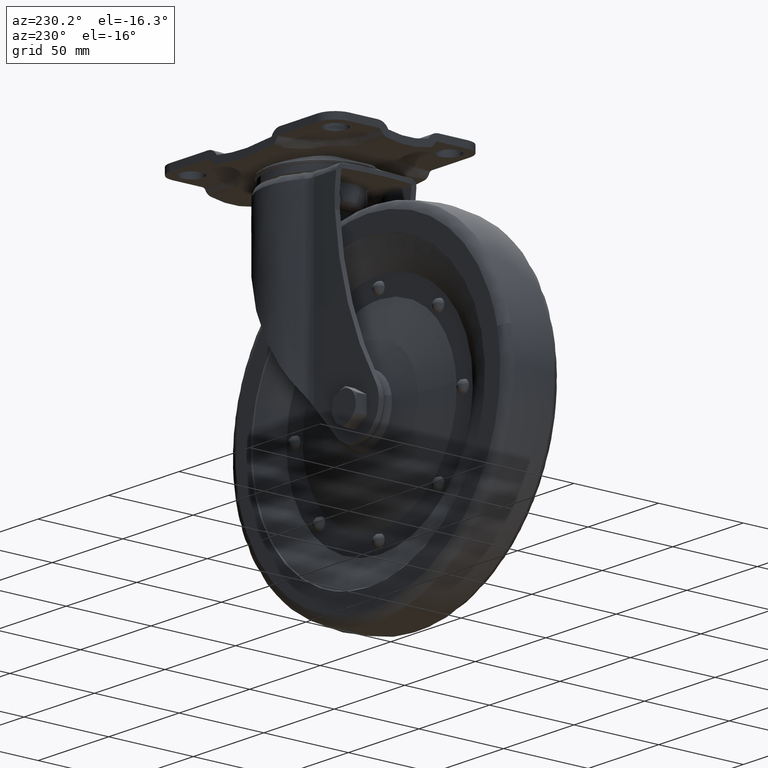
[diagram: clean part render]
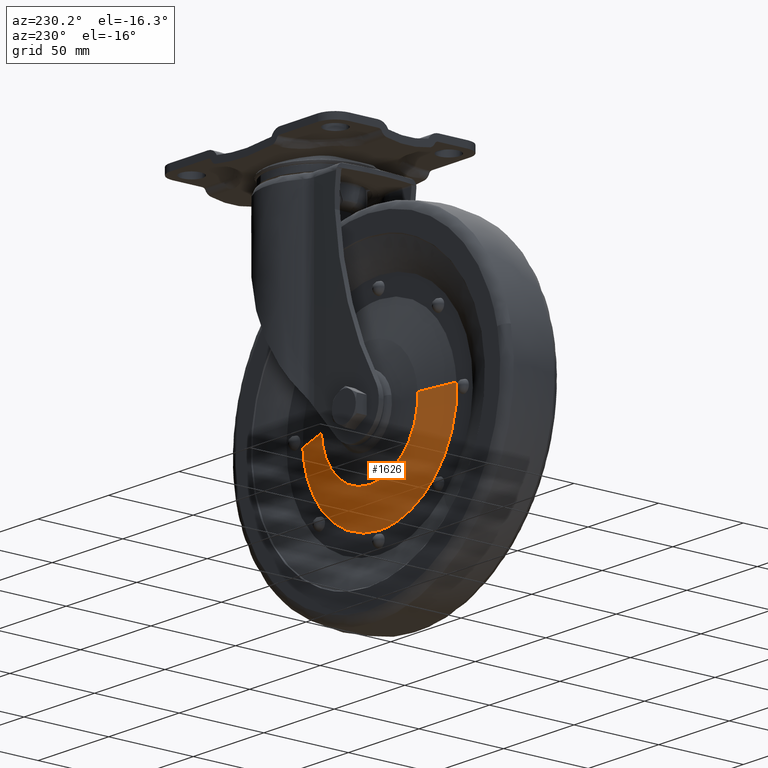
[diagram: same view with one face highlighted and labeled with its STEP entity id]
A machine part, auxiliary view. The second image highlights one B-rep face of the part: STEP entity #1626.
In plain terms, the highlighted face is a freeform B-spline surface patch.
Its self-contained STEP definition (entity closure, byte-faithful):
#871=CARTESIAN_POINT('',(-53.0,15.004481007767099,-169.942107020119810));
#872=VERTEX_POINT('',#871);
#886=CARTESIAN_POINT('',(-87.149060116877493,15.004481007727289,-133.640587003389300));
#887=VERTEX_POINT('',#886);
#888=CARTESIAN_POINT('',(-87.149060116877493,15.004481007727289,-133.640587003389300));
#889=CARTESIAN_POINT('',(-87.212874023550626,15.004481007727859,-134.683935154448390));
#890=CARTESIAN_POINT('',(-87.212874023548551,15.004481007728470,-135.729232996694210));
#891=CARTESIAN_POINT('',(-87.212874023480822,15.004481007748378,-169.942107020115740));
#892=CARTESIAN_POINT('',(-53.0,15.004481007767099,-169.942107020119810));
#900=(BOUNDED_CURVE()B_SPLINE_CURVE(2,(#888,#889,#890,#891,#892),.UNSPECIFIED.,.F.,.U.)B_SPLINE_CURVE_WITH_KNOTS((3,2,3),(0.739332962237497,0.750000000000000,1.0),.UNSPECIFIED.)CURVE()GEOMETRIC_REPRESENTATION_ITEM()RATIONAL_B_SPLINE_CURVE((0.976072041663618,0.987502787898143,1.0,0.707106781186547,1.0))REPRESENTATION_ITEM(''));
#901=EDGE_CURVE('',#887,#872,#900,.T.);
#949=CARTESIAN_POINT('',(-18.850939883122511,15.004481007727289,-137.817878990015090));
#950=VERTEX_POINT('',#949);
#966=CARTESIAN_POINT('',(-53.0,15.004481007767099,-169.942107020119810));
#967=CARTESIAN_POINT('',(-20.815741840659125,15.004481007747183,-169.942107020123640));
#968=CARTESIAN_POINT('',(-18.850939883122511,15.004481007727291,-137.817878990015090));
#976=(BOUNDED_CURVE()B_SPLINE_CURVE(2,(#966,#967,#968),.UNSPECIFIED.,.F.,.U.)B_SPLINE_CURVE_WITH_KNOTS((3,3),(0.0,0.239332962237497),.UNSPECIFIED.)CURVE()GEOMETRIC_REPRESENTATION_ITEM()RATIONAL_B_SPLINE_CURVE((1.0,0.719603993288404,0.976072041663619))REPRESENTATION_ITEM(''));
#977=EDGE_CURVE('',#872,#950,#976,.T.);
#1525=CARTESIAN_POINT('',(-107.508440782258010,8.999999999999858,-132.395353938138610));
#1526=VERTEX_POINT('',#1525);
#1527=CARTESIAN_POINT('',(-87.149060116877493,15.004481007727289,-133.640587003389300));
#1528=CARTESIAN_POINT('',(-107.508440782258010,8.999999999999858,-132.395353938138610));
#1529=QUASI_UNIFORM_CURVE('',1,(#1527,#1528),.UNSPECIFIED.,.F.,.U.);
#1530=EDGE_CURVE('',#887,#1526,#1529,.T.);
#1547=CARTESIAN_POINT('',(1.508440782257971,8.999999999999858,-139.063112055265690));
#1548=VERTEX_POINT('',#1547);
#1564=CARTESIAN_POINT('',(-18.850939883122511,15.004481007727289,-137.817878990015090));
#1565=CARTESIAN_POINT('',(1.508440782257971,8.999999999999858,-139.063112055265690));
#1566=QUASI_UNIFORM_CURVE('',1,(#1564,#1565),.UNSPECIFIED.,.F.,.U.);
#1567=EDGE_CURVE('',#950,#1548,#1566,.T.);
#1572=CARTESIAN_POINT('',(-86.640075600159520,15.154593032961429,-133.671717830936100));
#1573=CARTESIAN_POINT('',(-88.697590765925639,15.154593032961436,-167.311793431095510));
#1574=CARTESIAN_POINT('',(-55.057515165766127,15.154593032961429,-169.369308596861710));
#1575=CARTESIAN_POINT('',(-21.417439565606625,15.154593032961436,-171.426823762627950));
#1576=CARTESIAN_POINT('',(-19.359924399840491,15.154593032961429,-137.786748162468310));
#1577=CARTESIAN_POINT('',(-108.030149911810100,8.846135174175963,-132.363444840821900));
#1578=CARTESIAN_POINT('',(-111.395938067690390,8.846135174175963,-187.393594752632110));
#1579=CARTESIAN_POINT('',(-56.365788155880260,8.846135174175963,-190.759382908512290));
#1580=CARTESIAN_POINT('',(-1.335638244070132,8.846135174175963,-194.125171064392650));
#1581=CARTESIAN_POINT('',(2.030149911810128,8.846135174175963,-139.095021152582490));
#1589=(BOUNDED_SURFACE()B_SPLINE_SURFACE(2,1,((#1572,#1577),(#1573,#1578),(#1574,#1579),(#1575,#1580),(#1576,#1581)),.UNSPECIFIED.,.F.,.F.,.U.)B_SPLINE_SURFACE_WITH_KNOTS((3,2,3),(2,2),(0.0,91.347318894946454,182.694637789892910),(0.0,22.339281497637071),.UNSPECIFIED.)GEOMETRIC_REPRESENTATION_ITEM()RATIONAL_B_SPLINE_SURFACE(((1.0,1.0),(0.707106781186548,0.707106781186548),(1.0,1.0),(0.707106781186548,0.707106781186548),(1.0,1.0)))REPRESENTATION_ITEM('')SURFACE());
#1590=ORIENTED_EDGE('',*,*,#977,.T.);
#1591=ORIENTED_EDGE('',*,*,#1567,.T.);
#1592=CARTESIAN_POINT('',(-53.0,9.0,-190.339532996702190));
#1593=VERTEX_POINT('',#1592);
#1594=CARTESIAN_POINT('',(-53.0,9.0,-190.339532996702190));
#1595=CARTESIAN_POINT('',(-1.627759474462835,9.0,-190.339532996702250));
#1596=CARTESIAN_POINT('',(1.508440782257495,8.999999999999998,-139.063112055265690));
#1604=(BOUNDED_CURVE()B_SPLINE_CURVE(2,(#1594,#1595,#1596),.UNSPECIFIED.,.F.,.U.)B_SPLINE_CURVE_WITH_KNOTS((3,3),(0.0,0.239332962241958),.UNSPECIFIED.)CURVE()GEOMETRIC_REPRESENTATION_ITEM()RATIONAL_B_SPLINE_CURVE((1.0,0.719603993283177,0.976072041673181))REPRESENTATION_ITEM(''));
#1605=EDGE_CURVE('',#1593,#1548,#1604,.T.);
#1606=ORIENTED_EDGE('',*,*,#1605,.F.);
#1607=CARTESIAN_POINT('',(-107.508440782257510,9.000000000000002,-132.395353938138610));
#1608=CARTESIAN_POINT('',(-107.610299999999950,9.0,-134.060737427135730));
#1609=CARTESIAN_POINT('',(-107.610300000000000,9.0,-135.729232996702190));
#1610=CARTESIAN_POINT('',(-107.610300000000010,9.000000000000002,-190.339532996702270));
#1611=CARTESIAN_POINT('',(-53.0,9.0,-190.339532996702190));
#1619=(BOUNDED_CURVE()B_SPLINE_CURVE(2,(#1607,#1608,#1609,#1610,#1611),.UNSPECIFIED.,.F.,.U.)B_SPLINE_CURVE_WITH_KNOTS((3,2,3),(0.739332962241958,0.750000000000000,1.0),.UNSPECIFIED.)CURVE()GEOMETRIC_REPRESENTATION_ITEM()RATIONAL_B_SPLINE_CURVE((0.976072041673180,0.987502787903370,1.0,0.707106781186548,1.0))REPRESENTATION_ITEM(''));
#1620=EDGE_CURVE('',#1526,#1593,#1619,.T.);
#1621=ORIENTED_EDGE('',*,*,#1620,.F.);
#1622=ORIENTED_EDGE('',*,*,#1530,.F.);
#1623=ORIENTED_EDGE('',*,*,#901,.T.);
#1624=EDGE_LOOP('',(#1590,#1591,#1606,#1621,#1622,#1623));
#1625=FACE_OUTER_BOUND('',#1624,.T.);
#1626=ADVANCED_FACE('',(#1625),#1589,.T.);